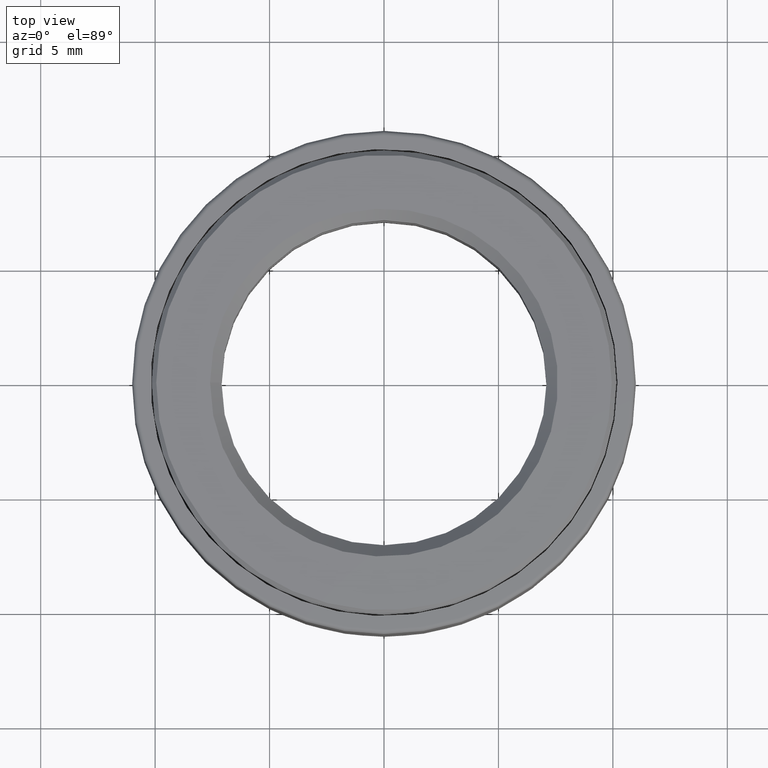
[diagram: clean part render]
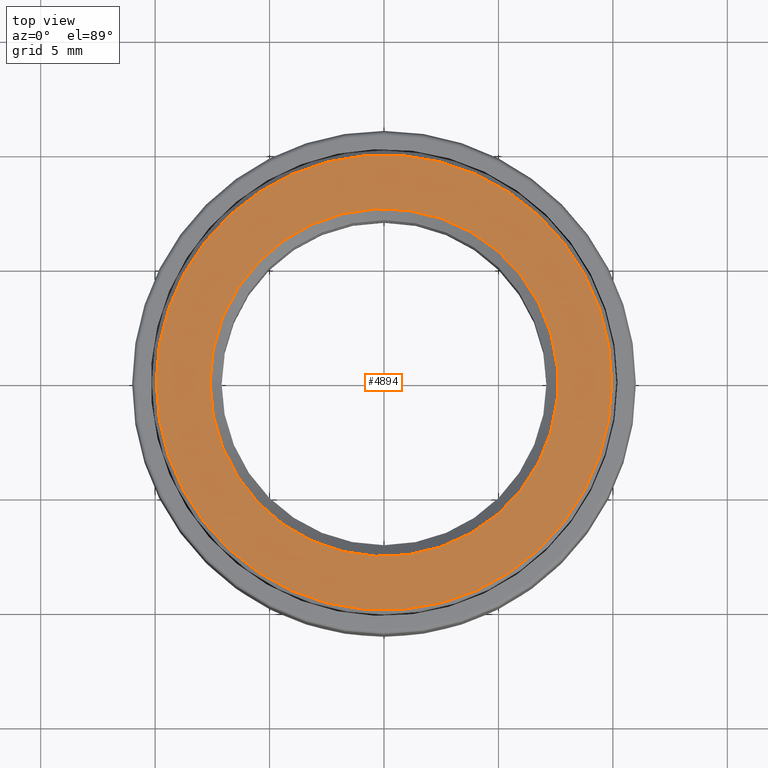
[diagram: same view with one face highlighted and labeled with its STEP entity id]
A machine part, top view. The second image highlights one B-rep face of the part: STEP entity #4894.
In plain terms, the highlighted planar face has unit normal (0, 0, -1).
Its self-contained STEP definition (entity closure, byte-faithful):
#856 = CARTESIAN_POINT ( 'NONE',  ( 0.0000000000000000000, 0.0000000000000000000, 3.650000000000000400 ) ) ;
#883 = VERTEX_POINT ( 'NONE', #9333 ) ;
#1137 = CARTESIAN_POINT ( 'NONE',  ( 0.0000000000000000000, 10.14999999999999900, 3.650000000000000400 ) ) ;
#1965 = ORIENTED_EDGE ( 'NONE', *, *, #5310, .T. ) ;
#2293 = CIRCLE ( 'NONE', #9692, 7.599999999999998800 ) ;
#2449 = DIRECTION ( 'NONE',  ( -1.000000000000000000, 0.0000000000000000000, 0.0000000000000000000 ) ) ;
#3196 = EDGE_CURVE ( 'NONE', #4592, #4592, #6762, .T. ) ;
#3479 = DIRECTION ( 'NONE',  ( 0.0000000000000000000, 0.0000000000000000000, -1.000000000000000000 ) ) ;
#3853 = FACE_OUTER_BOUND ( 'NONE', #7482, .T. ) ;
#3958 = DIRECTION ( 'NONE',  ( 0.0000000000000000000, 0.0000000000000000000, -1.000000000000000000 ) ) ;
#4592 = VERTEX_POINT ( 'NONE', #7097 ) ;
#4894 = ADVANCED_FACE ( 'NONE', ( #3853, #8989 ), #5665, .F. ) ;
#5182 = ORIENTED_EDGE ( 'NONE', *, *, #3196, .T. ) ;
#5310 = EDGE_CURVE ( 'NONE', #883, #883, #2293, .T. ) ;
#5462 = DIRECTION ( 'NONE',  ( -1.000000000000000000, 0.0000000000000000000, 0.0000000000000000000 ) ) ;
#5665 = PLANE ( 'NONE',  #6108 ) ;
#6108 = AXIS2_PLACEMENT_3D ( 'NONE', #1137, #3479, #8815 ) ;
#6573 = AXIS2_PLACEMENT_3D ( 'NONE', #9409, #9318, #5462 ) ;
#6743 = EDGE_LOOP ( 'NONE', ( #1965 ) ) ;
#6762 = CIRCLE ( 'NONE', #6573, 9.950000000000011700 ) ;
#7097 = CARTESIAN_POINT ( 'NONE',  ( -9.950000000000011700, 0.0000000000000000000, 3.650000000000000400 ) ) ;
#7482 = EDGE_LOOP ( 'NONE', ( #5182 ) ) ;
#8815 = DIRECTION ( 'NONE',  ( -1.000000000000000000, 0.0000000000000000000, -0.0000000000000000000 ) ) ;
#8989 = FACE_BOUND ( 'NONE', #6743, .T. ) ;
#9318 = DIRECTION ( 'NONE',  ( -0.0000000000000000000, -0.0000000000000000000, 1.000000000000000000 ) ) ;
#9333 = CARTESIAN_POINT ( 'NONE',  ( -7.599999999999998800, 0.0000000000000000000, 3.650000000000000400 ) ) ;
#9409 = CARTESIAN_POINT ( 'NONE',  ( 0.0000000000000000000, 0.0000000000000000000, 3.650000000000000400 ) ) ;
#9692 = AXIS2_PLACEMENT_3D ( 'NONE', #856, #3958, #2449 ) ;